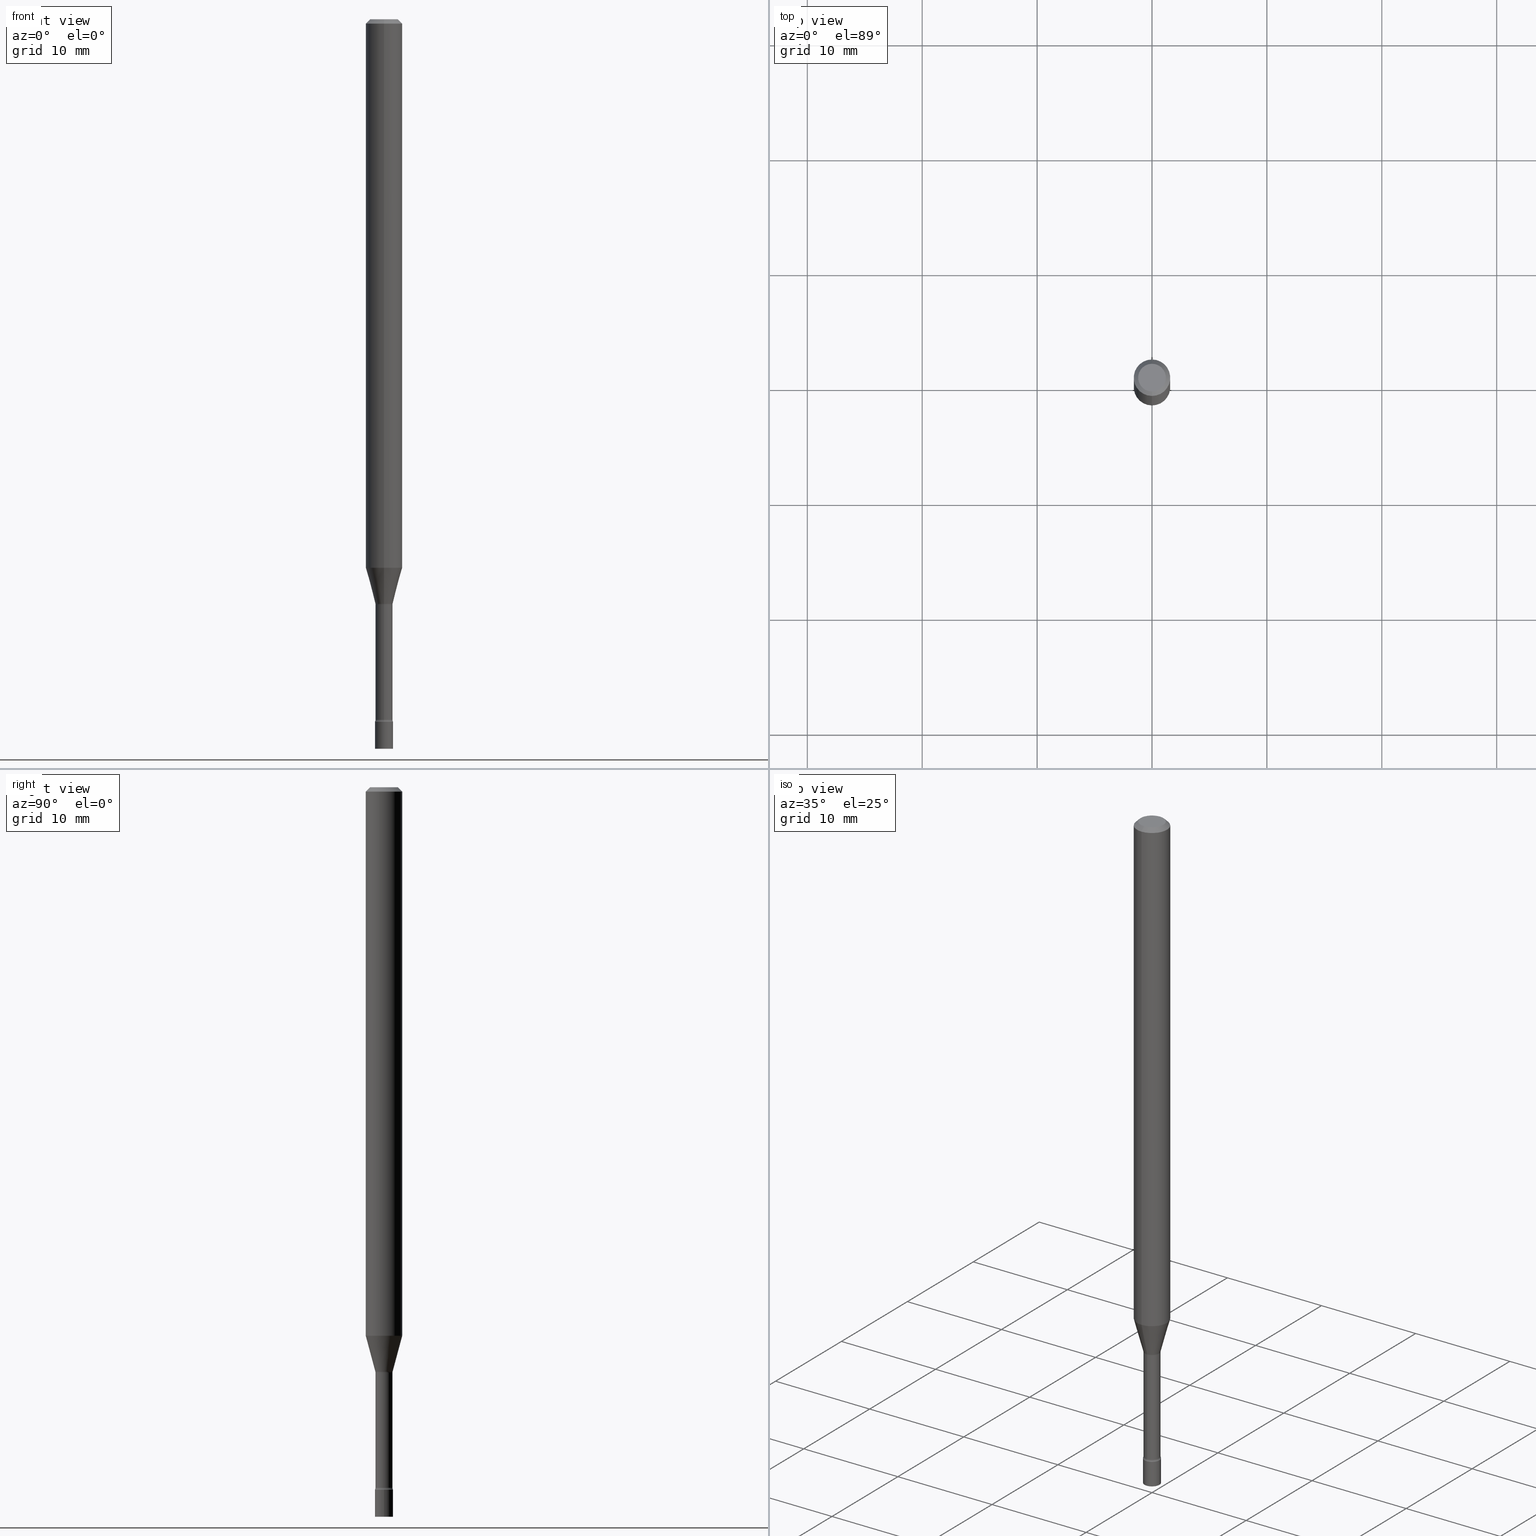
[diagram: canonical four-view strip — front | top / right | iso, engineering-drawing reading convention]
A machine part, canonical four-view strip (front | top / right | iso — engineering-drawing reading convention). The complete STEP part file that produces these views, byte-faithful:
ISO-10303-21;
HEADER;
FILE_DESCRIPTION (( 'STEP AP203' ),
    '1' );
FILE_NAME ('03575.STEP',
    '2024-03-08T21:53:57',
    ( '' ),
    ( '' ),
    'SwSTEP 2.0',
    'SolidWorks 2023',
    '' );
FILE_SCHEMA (( 'CONFIG_CONTROL_DESIGN' ));
ENDSEC;

DATA;
#1 = CC_DESIGN_DATE_AND_TIME_ASSIGNMENT ( #53, #444, ( #489 ) ) ;
#2 = CARTESIAN_POINT ( 'NONE',  ( 4.440892098501088631E-16, 0.06249999999999995143, -0.01500000000000024751 ) ) ;
#3 = APPROVAL_STATUS ( 'not_yet_approved' ) ;
#4 = AXIS2_PLACEMENT_3D ( 'NONE', #271, #38, #192 ) ;
#5 = DIRECTION ( 'NONE',  ( 2.445480495465296209E-29, -3.491464599128644458E-15, -1.000000000000000000 ) ) ;
#6 = CARTESIAN_POINT ( 'NONE',  ( 3.274220454076633282E-16, 0.02966111260565699667, -2.002092501787273271 ) ) ;
#7 = LOCAL_TIME ( 16, 53, 57.00000000000000000, #433 ) ;
#8 = CARTESIAN_POINT ( 'NONE',  ( 3.668220743197951390E-31, -5.237196898692977928E-17, -0.01500000000000003067 ) ) ;
#9 = EDGE_CURVE ( 'NONE', #460, #91, #24, .T. ) ;
#10 = FACE_OUTER_BOUND ( 'NONE', #227, .T. ) ;
#11 = CARTESIAN_POINT ( 'NONE',  ( -3.082978022197902972E-16, -0.04415000000000841862, -2.399783525791634453 ) ) ;
#12 = APPROVAL_STATUS ( 'not_yet_approved' ) ;
#13 = DIRECTION ( 'NONE',  ( 4.937700262164548042E-15, 0.7071067811865451302, -0.7071067811865499042 ) ) ;
#14 = ADVANCED_FACE ( 'NONE', ( #334 ), #185, .F. ) ;
#15 = ORIENTED_EDGE ( 'NONE', *, *, #385, .F. ) ;
#16 = SECURITY_CLASSIFICATION_LEVEL ( 'unclassified' ) ;
#17 = DIRECTION ( 'NONE',  ( 1.000000000000000000, -6.982962677686270655E-15, 0.000000000000000000 ) ) ;
#18 = AXIS2_PLACEMENT_3D ( 'NONE', #326, #465, #331 ) ;
#19 = CARTESIAN_POINT ( 'NONE',  ( 4.905548768736609857E-29, -7.003823536619741706E-15, -2.005974787463811193 ) ) ;
#20 = FACE_OUTER_BOUND ( 'NONE', #420, .T. ) ;
#21 = PERSON_AND_ORGANIZATION_ROLE ( 'creator' ) ;
#22 = DIRECTION ( 'NONE',  ( -6.982962677686265922E-15, -1.000000000000000000, 3.491464599128644063E-15 ) ) ;
#23 = ORIENTED_EDGE ( 'NONE', *, *, #199, .F. ) ;
#24 = LINE ( 'NONE', #285, #224 ) ;
#25 = CARTESIAN_POINT ( 'NONE',  ( -2.035533620544962127E-16, -0.02915000000000841224, -2.399783525791634897 ) ) ;
#26 = ORIENTED_EDGE ( 'NONE', *, *, #339, .T. ) ;
#27 = AXIS2_PLACEMENT_3D ( 'NONE', #348, #107, #290 ) ;
#28 = ADVANCED_FACE ( 'NONE', ( #260 ), #246, .F. ) ;
#29 = ORIENTED_EDGE ( 'NONE', *, *, #161, .T. ) ;
#30 = DIRECTION ( 'NONE',  ( 1.000000000000000000, -6.982962677686266711E-15, 4.876176775795935232E-29 ) ) ;
#31 = ORIENTED_EDGE ( 'NONE', *, *, #468, .F. ) ;
#32 = ORIENTED_EDGE ( 'NONE', *, *, #148, .F. ) ;
#33 = AXIS2_PLACEMENT_3D ( 'NONE', #188, #301, #22 ) ;
#34 = VERTEX_POINT ( 'NONE', #502 ) ;
#35 = CIRCLE ( 'NONE', #104, 0.01500000000000001853 ) ;
#36 = ORIENTED_EDGE ( 'NONE', *, *, #311, .F. ) ;
#37 = ORIENTED_EDGE ( 'NONE', *, *, #468, .T. ) ;
#38 = DIRECTION ( 'NONE',  ( -2.445480495465296209E-29, 3.491464599128644458E-15, 1.000000000000000000 ) ) ;
#39 = AXIS2_PLACEMENT_3D ( 'NONE', #337, #376, #30 ) ;
#40 = CALENDAR_DATE ( 2024, 8, 3 ) ;
#41 = AXIS2_PLACEMENT_3D ( 'NONE', #276, #398, #202 ) ;
#42 = PERSON_AND_ORGANIZATION ( #242, #230 ) ;
#43 = DIRECTION ( 'NONE',  ( -2.445480495465296209E-29, 3.491464599128644458E-15, 1.000000000000000000 ) ) ;
#44 = APPROVAL_ROLE ( '' ) ;
#45 = MANIFOLD_SOLID_BREP ( 'Body-Move/Copy2[2]', #117 ) ;
#46 = CARTESIAN_POINT ( 'NONE',  ( 5.886243416487624138E-29, -8.403995582595451079E-15, -2.407000000000000028 ) ) ;
#47 = DIRECTION ( 'NONE',  ( -1.807323732225324617E-15, -0.2588190451025174088, 0.9659258262890690894 ) ) ;
#48 = EDGE_CURVE ( 'NONE', #388, #190, #318, .T. ) ;
#49 = LINE ( 'NONE', #320, #110 ) ;
#50 = CLOSED_SHELL ( 'NONE', ( #355, #262, #426, #109 ) ) ;
#51 = VERTEX_POINT ( 'NONE', #507 ) ;
#52 = CC_DESIGN_APPROVAL ( #431, ( #489 ) ) ;
#53 = DATE_AND_TIME ( #40, #7 ) ;
#54 = CARTESIAN_POINT ( 'NONE',  ( 4.440892098500625669E-16, 0.06250000000000000000, -2.182165374455402786E-16 ) ) ;
#55 = FACE_OUTER_BOUND ( 'NONE', #64, .T. ) ;
#56 = DATE_AND_TIME ( #407, #389 ) ;
#57 = APPROVAL ( #12, 'UNSPECIFIED' ) ;
#58 = CARTESIAN_POINT ( 'NONE',  ( -4.364351673553458169E-16, -0.06250000000000659195, -1.879536105567577886 ) ) ;
#59 = ORIENTED_EDGE ( 'NONE', *, *, #61, .F. ) ;
#60 = DIRECTION ( 'NONE',  ( 1.000000000000000000, -6.982962677686266711E-15, 4.876176775795935232E-29 ) ) ;
#61 = EDGE_CURVE ( 'NONE', #152, #272, #147, .T. ) ;
#62 = AXIS2_PLACEMENT_3D ( 'NONE', #248, #82, #364 ) ;
#63 = CARTESIAN_POINT ( 'NONE',  ( 0.000000000000000000, 0.000000000000000000, 0.000000000000000000 ) ) ;
#64 = EDGE_LOOP ( 'NONE', ( #322, #345, #36, #448 ) ) ;
#65 = FACE_OUTER_BOUND ( 'NONE', #495, .T. ) ;
#66 = LINE ( 'NONE', #442, #191 ) ;
#67 = CARTESIAN_POINT ( 'NONE',  ( 5.886243416487624138E-29, -8.403995582595451079E-15, -2.407000000000000028 ) ) ;
#68 = ORIENTED_EDGE ( 'NONE', *, *, #454, .F. ) ;
#69 = MECHANICAL_CONTEXT ( 'NONE', #362, 'mechanical' ) ;
#70 = ADVANCED_BREP_SHAPE_REPRESENTATION ( '03575', ( #205, #45, #458 ), #233 ) ;
#71 = VERTEX_POINT ( 'NONE', #6 ) ;
#72 = ORIENTED_EDGE ( 'NONE', *, *, #161, .F. ) ;
#73 = AXIS2_PLACEMENT_3D ( 'NONE', #158, #88, #400 ) ;
#74 = ORIENTED_EDGE ( 'NONE', *, *, #385, .T. ) ;
#75 = SECURITY_CLASSIFICATION ( '', '', #16 ) ;
#76 = ORIENTED_EDGE ( 'NONE', *, *, #313, .F. ) ;
#77 = CARTESIAN_POINT ( 'NONE',  ( 7.071034971237687434E-46, -1.009546726177410776E-31, -2.891470606430781395E-17 ) ) ;
#78 = CIRCLE ( 'NONE', #494, 0.06250000000000000000 ) ;
#79 = ADVANCED_FACE ( 'NONE', ( #55 ), #254, .T. ) ;
#80 = CIRCLE ( 'NONE', #216, 0.03099999999999999978 ) ;
#81 = DIRECTION ( 'NONE',  ( -2.445480495465296209E-29, 3.491464599128644063E-15, 1.000000000000000000 ) ) ;
#82 = DIRECTION ( 'NONE',  ( -2.445480495465296209E-29, 3.491464599128644458E-15, 1.000000000000000000 ) ) ;
#83 = PERSON_AND_ORGANIZATION ( #242, #230 ) ;
#84 = CARTESIAN_POINT ( 'NONE',  ( -2.035533620545056051E-16, -0.02915000000000700364, -2.005974787463811193 ) ) ;
#85 = LINE ( 'NONE', #238, #142 ) ;
#86 = DIRECTION ( 'NONE',  ( -6.982962677686265922E-15, -1.000000000000000000, 3.491464599128644063E-15 ) ) ;
#87 = PERSON_AND_ORGANIZATION ( #242, #230 ) ;
#88 = DIRECTION ( 'NONE',  ( -2.445480495465296209E-29, 3.491464599128644458E-15, 1.000000000000000000 ) ) ;
#89 = AXIS2_PLACEMENT_3D ( 'NONE', #11, #97, #131 ) ;
#90 = CC_DESIGN_DATE_AND_TIME_ASSIGNMENT ( #486, #449, ( #75 ) ) ;
#91 = VERTEX_POINT ( 'NONE', #410 ) ;
#92 = APPROVAL_PERSON_ORGANIZATION ( #327, #338, #340 ) ;
#93 = ADVANCED_FACE ( 'NONE', ( #399 ), #370, .F. ) ;
#94 = EDGE_CURVE ( 'NONE', #388, #473, #287, .T. ) ;
#95 = CARTESIAN_POINT ( 'NONE',  ( 6.113672015462842613E-29, -8.728703347107864943E-15, -2.500000000000000000 ) ) ;
#96 = DIRECTION ( 'NONE',  ( -2.445468806185136877E-29, 3.491481338843145188E-15, 1.000000000000000000 ) ) ;
#97 = DIRECTION ( 'NONE',  ( -1.000000000000000000, 6.982962677686265922E-15, -4.883557194083112340E-29 ) ) ;
#98 = DIRECTION ( 'NONE',  ( -2.445480495465296209E-29, 3.491464599128644458E-15, 1.000000000000000000 ) ) ;
#99 = EDGE_CURVE ( 'NONE', #312, #234, #66, .T. ) ;
#100 = CARTESIAN_POINT ( 'NONE',  ( 0.000000000000000000, 0.000000000000000000, 0.000000000000000000 ) ) ;
#101 = APPROVAL_DATE_TIME ( #132, #57 ) ;
#102 = DIRECTION ( 'NONE',  ( -2.445480495465296209E-29, 3.491464599128644458E-15, 1.000000000000000000 ) ) ;
#103 = CIRCLE ( 'NONE', #159, 0.06250000000000000000 ) ;
#104 = AXIS2_PLACEMENT_3D ( 'NONE', #452, #243, #358 ) ;
#105 = DIRECTION ( 'NONE',  ( -2.445480495465296209E-29, 3.491464599128644458E-15, 1.000000000000000000 ) ) ;
#106 = ADVANCED_FACE ( 'NONE', ( #222 ), #250, .T. ) ;
#107 = DIRECTION ( 'NONE',  ( -2.445480495465296209E-29, 3.491464599128644458E-15, 1.000000000000000000 ) ) ;
#108 = CARTESIAN_POINT ( 'NONE',  ( 3.840629472727447874E-16, 0.04749999999999999362, -1.947592745229184365E-16 ) ) ;
#109 = ADVANCED_FACE ( 'NONE', ( #154 ), #316, .T. ) ;
#110 = VECTOR ( 'NONE', #96, 39.37007874015748143 ) ;
#111 = PERSON_AND_ORGANIZATION_ROLE ( 'design_owner' ) ;
#112 = CIRCLE ( 'NONE', #264, 0.01500000000000001159 ) ;
#113 = EDGE_CURVE ( 'NONE', #418, #152, #267, .T. ) ;
#114 = DIRECTION ( 'NONE',  ( -2.445480495465296209E-29, 3.491464599128644458E-15, 1.000000000000000000 ) ) ;
#115 = EDGE_LOOP ( 'NONE', ( #268, #414, #432, #31 ) ) ;
#116 = ORIENTED_EDGE ( 'NONE', *, *, #519, .F. ) ;
#117 = CLOSED_SHELL ( 'NONE', ( #443, #106, #175, #269, #79, #397, #245, #417, #478, #93, #139, #28, #344, #14 ) ) ;
#118 = ORIENTED_EDGE ( 'NONE', *, *, #498, .F. ) ;
#119 = TOROIDAL_SURFACE ( 'NONE', #299, 0.04415000000000000174, 0.01500000000000002373 ) ;
#120 =( NAMED_UNIT ( * ) PLANE_ANGLE_UNIT ( ) SI_UNIT ( $, .RADIAN. ) );
#121 = LINE ( 'NONE', #54, #174 ) ;
#122 = AXIS2_PLACEMENT_3D ( 'NONE', #220, #215, #341 ) ;
#123 = CARTESIAN_POINT ( 'NONE',  ( 2.136957277799090563E-16, 0.02914999999999165481, -2.399783525791634897 ) ) ;
#124 = CALENDAR_DATE ( 2024, 8, 3 ) ;
#125 = CIRCLE ( 'NONE', #481, 0.02966111260566398414 ) ;
#126 = ORIENTED_EDGE ( 'NONE', *, *, #434, .F. ) ;
#127 = EDGE_CURVE ( 'NONE', #152, #418, #512, .T. ) ;
#128 = FACE_OUTER_BOUND ( 'NONE', #514, .T. ) ;
#129 = ORIENTED_EDGE ( 'NONE', *, *, #284, .T. ) ;
#130 = CARTESIAN_POINT ( 'NONE',  ( -4.364351673553912750E-16, -0.06250000000000005551, -0.01499999999999981209 ) ) ;
#131 = DIRECTION ( 'NONE',  ( -6.982962677686266711E-15, -1.000000000000000000, 0.000000000000000000 ) ) ;
#132 = DATE_AND_TIME ( #179, #363 ) ;
#133 = CIRCLE ( 'NONE', #321, 0.03099999999999999978 ) ;
#134 = DIRECTION ( 'NONE',  ( -2.445480495465296209E-29, 3.491464599128644063E-15, 1.000000000000000000 ) ) ;
#135 = DIRECTION ( 'NONE',  ( -2.445480495465296209E-29, 3.491464599128644458E-15, 1.000000000000000000 ) ) ;
#136 = DIRECTION ( 'NONE',  ( -2.445468806185136597E-29, 3.491481338843145583E-15, 1.000000000000000000 ) ) ;
#137 = DIRECTION ( 'NONE',  ( -6.982962677686265922E-15, -1.000000000000000000, 4.370956789862821150E-15 ) ) ;
#138 = DIRECTION ( 'NONE',  ( -6.982962677686265922E-15, -1.000000000000000000, 0.000000000000000000 ) ) ;
#139 = ADVANCED_FACE ( 'NONE', ( #515 ), #275, .F. ) ;
#140 = DIRECTION ( 'NONE',  ( -6.982962677686265922E-15, -1.000000000000000000, 0.000000000000000000 ) ) ;
#141 = EDGE_LOOP ( 'NONE', ( #59, #482, #37, #195 ) ) ;
#142 = VECTOR ( 'NONE', #477, 39.37007874015748143 ) ;
#143 = DIRECTION ( 'NONE',  ( 6.982962677686265922E-15, 1.000000000000000000, -3.491464599128644063E-15 ) ) ;
#144 = APPROVAL_PERSON_ORGANIZATION ( #217, #57, #167 ) ;
#145 = CARTESIAN_POINT ( 'NONE',  ( 5.868623805662381857E-29, -8.378759225873614383E-15, -2.399783525791634897 ) ) ;
#146 = ORIENTED_EDGE ( 'NONE', *, *, #263, .F. ) ;
#147 = LINE ( 'NONE', #305, #380 ) ;
#148 = EDGE_CURVE ( 'NONE', #190, #241, #335, .T. ) ;
#149 = ORIENTED_EDGE ( 'NONE', *, *, #329, .F. ) ;
#150 = TOROIDAL_SURFACE ( 'NONE', #429, 0.04415000000000004338, 0.01500000000000001332 ) ;
#151 = CIRCLE ( 'NONE', #374, 0.02966111260566398414 ) ;
#152 = VERTEX_POINT ( 'NONE', #157 ) ;
#153 = ORIENTED_EDGE ( 'NONE', *, *, #476, .T. ) ;
#154 = FACE_OUTER_BOUND ( 'NONE', #314, .T. ) ;
#155 = ORIENTED_EDGE ( 'NONE', *, *, #454, .T. ) ;
#156 = EDGE_CURVE ( 'NONE', #463, #234, #204, .T. ) ;
#157 = CARTESIAN_POINT ( 'NONE',  ( -3.773273898774340269E-16, -0.04749999999999999362, 1.369298623943027840E-16 ) ) ;
#158 = CARTESIAN_POINT ( 'NONE',  ( 4.596368886688314482E-29, -6.562333775373317766E-15, -1.879536105567578330 ) ) ;
#159 = AXIS2_PLACEMENT_3D ( 'NONE', #178, #105, #137 ) ;
#160 = ORIENTED_EDGE ( 'NONE', *, *, #393, .F. ) ;
#161 = EDGE_CURVE ( 'NONE', #221, #51, #49, .T. ) ;
#162 = DIRECTION ( 'NONE',  ( 1.000000000000000000, -7.105427357601001070E-15, 4.926315303539704750E-29 ) ) ;
#163 = LOCAL_TIME ( 16, 53, 57.00000000000000000, #480 ) ;
#164 = DIRECTION ( 'NONE',  ( -6.982962677686265922E-15, -1.000000000000000000, 3.491464599128644063E-15 ) ) ;
#165 = DIRECTION ( 'NONE',  ( -6.982962677686265922E-15, -1.000000000000000000, 0.000000000000000000 ) ) ;
#166 = ORIENTED_EDGE ( 'NONE', *, *, #170, .T. ) ;
#167 = APPROVAL_ROLE ( '' ) ;
#168 = DIRECTION ( 'NONE',  ( -6.982962677686265922E-15, -1.000000000000000000, 0.000000000000000000 ) ) ;
#169 = DIRECTION ( 'NONE',  ( -6.982962677686265922E-15, -1.000000000000000000, 3.491464599128644458E-15 ) ) ;
#170 = EDGE_CURVE ( 'NONE', #470, #34, #85, .T. ) ;
#171 = ORIENTED_EDGE ( 'NONE', *, *, #357, .F. ) ;
#172 = AXIS2_PLACEMENT_3D ( 'NONE', #330, #488, #484 ) ;
#173 = DIRECTION ( 'NONE',  ( -2.445480495465296209E-29, 3.491464599128644458E-15, 1.000000000000000000 ) ) ;
#174 = VECTOR ( 'NONE', #134, 39.37007874015748143 ) ;
#175 = ADVANCED_FACE ( 'NONE', ( #405 ), #150, .F. ) ;
#176 = APPROVAL_STATUS ( 'not_yet_approved' ) ;
#177 = DIRECTION ( 'NONE',  ( -6.982962677686265922E-15, -1.000000000000000000, 3.491464599128644063E-15 ) ) ;
#178 = CARTESIAN_POINT ( 'NONE',  ( 4.596368886688314482E-29, -6.562333775373317766E-15, -1.879536105567578330 ) ) ;
#179 = CALENDAR_DATE ( 2024, 8, 3 ) ;
#180 = CARTESIAN_POINT ( 'NONE',  ( 6.113672015462842613E-29, -8.728703347107864943E-15, -2.500000000000000000 ) ) ;
#181 = DIRECTION ( 'NONE',  ( -4.851104656540964275E-15, -0.7071067811865500152, -0.7071067811865450192 ) ) ;
#182 = DIRECTION ( 'NONE',  ( -6.982962677686265922E-15, -1.000000000000000000, 0.000000000000000000 ) ) ;
#183 = ORIENTED_EDGE ( 'NONE', *, *, #48, .F. ) ;
#184 = CARTESIAN_POINT ( 'NONE',  ( 0.000000000000000000, 0.000000000000000000, 0.000000000000000000 ) ) ;
#185 = TOROIDAL_SURFACE ( 'NONE', #475, 0.04415000000000000174, 0.01500000000000002373 ) ;
#186 = CIRCLE ( 'NONE', #319, 0.03099999999999999978 ) ;
#187 = ORIENTED_EDGE ( 'NONE', *, *, #329, .T. ) ;
#188 = CARTESIAN_POINT ( 'NONE',  ( 0.000000000000000000, 0.000000000000000000, 0.000000000000000000 ) ) ;
#189 = ORIENTED_EDGE ( 'NONE', *, *, #170, .F. ) ;
#190 = VERTEX_POINT ( 'NONE', #283 ) ;
#191 = VECTOR ( 'NONE', #47, 39.37007874015748854 ) ;
#192 = DIRECTION ( 'NONE',  ( -6.982962677686266711E-15, -1.000000000000000000, 3.491464599128645247E-15 ) ) ;
#193 = VECTOR ( 'NONE', #13, 39.37007874015748143 ) ;
#194 = ORIENTED_EDGE ( 'NONE', *, *, #513, .T. ) ;
#195 = ORIENTED_EDGE ( 'NONE', *, *, #516, .T. ) ;
#196 = PRODUCT ( '03575', '03575', '', ( #69 ) ) ;
#197 = ORIENTED_EDGE ( 'NONE', *, *, #263, .T. ) ;
#198 = AXIS2_PLACEMENT_3D ( 'NONE', #288, #81, #201 ) ;
#199 = EDGE_CURVE ( 'NONE', #463, #213, #121, .T. ) ;
#200 = DATE_AND_TIME ( #124, #163 ) ;
#201 = DIRECTION ( 'NONE',  ( -6.982962677686265922E-15, -1.000000000000000000, 3.491464599128644063E-15 ) ) ;
#202 = DIRECTION ( 'NONE',  ( -6.982962677686265922E-15, -1.000000000000000000, 0.000000000000000000 ) ) ;
#203 = DIRECTION ( 'NONE',  ( -2.445468806185136877E-29, 3.491481338843145188E-15, 1.000000000000000000 ) ) ;
#204 = CIRCLE ( 'NONE', #73, 0.06250000000000000000 ) ;
#205 = MANIFOLD_SOLID_BREP ( 'Body-Move/Copy2[1]', #50 ) ;
#206 = CARTESIAN_POINT ( 'NONE',  ( 4.905548768736609857E-29, -7.003823536619741706E-15, -2.005974787463811193 ) ) ;
#207 = APPROVAL_DATE_TIME ( #56, #338 ) ;
#208 = CARTESIAN_POINT ( 'NONE',  ( 4.364351673553919652E-16, 0.06249999999999995143, -0.01500000000000024751 ) ) ;
#209 = CC_DESIGN_PERSON_AND_ORGANIZATION_ASSIGNMENT ( #306, #111, ( #196 ) ) ;
#210 = CARTESIAN_POINT ( 'NONE',  ( 2.107548809652177439E-16, 0.02966111260565699320, -2.002092501787273271 ) ) ;
#211 = ORIENTED_EDGE ( 'NONE', *, *, #219, .T. ) ;
#212 = DIRECTION ( 'NONE',  ( 6.982962677686265922E-15, 1.000000000000000000, -3.483106191921935554E-15 ) ) ;
#213 = VERTEX_POINT ( 'NONE', #2 ) ;
#214 = CONICAL_SURFACE ( 'NONE', #307, 0.02966111260566398414, 0.2617993877991495189 ) ;
#215 = DIRECTION ( 'NONE',  ( -2.445480495465296209E-29, 3.491464599128644458E-15, 1.000000000000000000 ) ) ;
#216 = AXIS2_PLACEMENT_3D ( 'NONE', #500, #173, #459 ) ;
#217 = PERSON_AND_ORGANIZATION ( #242, #230 ) ;
#218 = DIRECTION ( 'NONE',  ( -2.445468806185136597E-29, 3.491481338843145583E-15, 1.000000000000000000 ) ) ;
#219 = EDGE_CURVE ( 'NONE', #234, #272, #441, .T. ) ;
#220 = CARTESIAN_POINT ( 'NONE',  ( 4.896078163238095355E-29, -6.990235094171167377E-15, -2.002092501787273271 ) ) ;
#221 = VERTEX_POINT ( 'NONE', #253 ) ;
#222 = FACE_OUTER_BOUND ( 'NONE', #428, .T. ) ;
#223 = CARTESIAN_POINT ( 'NONE',  ( 4.896078163238095355E-29, -6.990235094171167377E-15, -2.002092501787273271 ) ) ;
#224 = VECTOR ( 'NONE', #203, 39.37007874015748143 ) ;
#225 = AXIS2_PLACEMENT_3D ( 'NONE', #492, #98, #457 ) ;
#226 = ORIENTED_EDGE ( 'NONE', *, *, #284, .F. ) ;
#227 = EDGE_LOOP ( 'NONE', ( #472, #352, #504, #270 ) ) ;
#228 = ORIENTED_EDGE ( 'NONE', *, *, #391, .F. ) ;
#229 = AXIS2_PLACEMENT_3D ( 'NONE', #375, #499, #138 ) ;
#230 = ORGANIZATION ( 'UNSPECIFIED', 'UNSPECIFIED', '' ) ;
#231 = ORIENTED_EDGE ( 'NONE', *, *, #113, .T. ) ;
#232 = APPROVAL_DATE_TIME ( #200, #431 ) ;
#233 =( GEOMETRIC_REPRESENTATION_CONTEXT ( 3 ) GLOBAL_UNCERTAINTY_ASSIGNED_CONTEXT ( ( #356 ) ) GLOBAL_UNIT_ASSIGNED_CONTEXT ( ( #404, #120, #421 ) ) REPRESENTATION_CONTEXT ( 'NONE', 'WORKASPACE' ) );
#234 = VERTEX_POINT ( 'NONE', #58 ) ;
#235 = PERSON_AND_ORGANIZATION ( #242, #230 ) ;
#236 = CC_DESIGN_PERSON_AND_ORGANIZATION_ASSIGNMENT ( #83, #371, ( #506 ) ) ;
#237 = CIRCLE ( 'NONE', #394, 0.03099999999999999978 ) ;
#238 = CARTESIAN_POINT ( 'NONE',  ( 2.071232074740692945E-16, 0.02915000000000001618, -1.017761930646000333E-16 ) ) ;
#239 = DESIGN_CONTEXT ( 'detailed design', #464, 'design' ) ;
#240 = CARTESIAN_POINT ( 'NONE',  ( 2.202682480856899248E-16, 0.03099999999999160719, -2.407000000000000473 ) ) ;
#241 = VERTEX_POINT ( 'NONE', #240 ) ;
#242 = PERSON ( 'UNSPECIFIED', 'UNSPECIFIED', 'UNSPECIFIED', ('UNSPECIFIED'), ('UNSPECIFIED'), ('UNSPECIFIED') ) ;
#243 = DIRECTION ( 'NONE',  ( 1.000000000000000000, -7.105427357601001070E-15, 4.926315303539704750E-29 ) ) ;
#244 = CC_DESIGN_PERSON_AND_ORGANIZATION_ASSIGNMENT ( #235, #353, ( #489 ) ) ;
#245 = ADVANCED_FACE ( 'NONE', ( #10 ), #214, .T. ) ;
#246 = TOROIDAL_SURFACE ( 'NONE', #27, 0.04415000000000004338, 0.01500000000000001332 ) ;
#247 = LENGTH_MEASURE_WITH_UNIT ( LENGTH_MEASURE( 0.02539999999999999897 ), #328 );
#248 = CARTESIAN_POINT ( 'NONE',  ( 5.886271552584968156E-29, -8.403955290102646829E-15, -2.407000000000000028 ) ) ;
#249 = CC_DESIGN_APPROVAL ( #57, ( #75 ) ) ;
#250 = CYLINDRICAL_SURFACE ( 'NONE', #278, 0.02915000000000001618 ) ;
#251 = COORDINATED_UNIVERSAL_TIME_OFFSET ( 5, 0, .BEHIND. ) ;
#252 = DIRECTION ( 'NONE',  ( 2.445480495465296209E-29, -3.491464599128644458E-15, -1.000000000000000000 ) ) ;
#253 = CARTESIAN_POINT ( 'NONE',  ( -0.03099999999999999978, -8.346081216766027547E-15, -2.500000000000000000 ) ) ;
#254 = CYLINDRICAL_SURFACE ( 'NONE', #18, 0.06250000000000000000 ) ;
#255 = DIRECTION ( 'NONE',  ( -2.445468806185136597E-29, 3.491481338843145583E-15, 1.000000000000000000 ) ) ;
#256 = CIRCLE ( 'NONE', #229, 0.02915000000000003352 ) ;
#257 = DIRECTION ( 'NONE',  ( -2.445468806185136597E-29, 3.491481338843145583E-15, 1.000000000000000000 ) ) ;
#258 = CC_DESIGN_PERSON_AND_ORGANIZATION_ASSIGNMENT ( #292, #21, ( #506 ) ) ;
#259 = DIRECTION ( 'NONE',  ( -2.445480495465296209E-29, 3.491464599128644458E-15, 1.000000000000000000 ) ) ;
#260 = FACE_OUTER_BOUND ( 'NONE', #387, .T. ) ;
#261 = CYLINDRICAL_SURFACE ( 'NONE', #456, 0.03099999999999999978 ) ;
#262 = ADVANCED_FACE ( 'NONE', ( #128 ), #409, .T. ) ;
#263 = EDGE_CURVE ( 'NONE', #34, #473, #510, .T. ) ;
#264 = AXIS2_PLACEMENT_3D ( 'NONE', #286, #162, #325 ) ;
#265 = ORIENTED_EDGE ( 'NONE', *, *, #434, .T. ) ;
#266 = PRODUCT_DEFINITION_SHAPE ( 'NONE', 'NONE',  #489 ) ;
#267 = CIRCLE ( 'NONE', #4, 0.04749999999999999362 ) ;
#268 = ORIENTED_EDGE ( 'NONE', *, *, #127, .F. ) ;
#269 = ADVANCED_FACE ( 'NONE', ( #440 ), #435, .T. ) ;
#270 = ORIENTED_EDGE ( 'NONE', *, *, #156, .F. ) ;
#271 = CARTESIAN_POINT ( 'NONE',  ( 7.071034971237687434E-46, -1.009546726177410776E-31, -2.891470606430781395E-17 ) ) ;
#272 = VERTEX_POINT ( 'NONE', #130 ) ;
#273 = CIRCLE ( 'NONE', #225, 0.02914999999999999883 ) ;
#274 = CC_DESIGN_PERSON_AND_ORGANIZATION_ASSIGNMENT ( #87, #491, ( #75 ) ) ;
#275 = PLANE ( 'NONE',  #198 ) ;
#276 = CARTESIAN_POINT ( 'NONE',  ( 4.905572217137893975E-29, -7.003789957174503140E-15, -2.005974787463811193 ) ) ;
#277 = AXIS2_PLACEMENT_3D ( 'NONE', #145, #297, #182 ) ;
#278 = AXIS2_PLACEMENT_3D ( 'NONE', #406, #361, #164 ) ;
#279 = FACE_OUTER_BOUND ( 'NONE', #141, .T. ) ;
#280 = CARTESIAN_POINT ( 'NONE',  ( -4.364351673553916201E-16, -0.06250000000000000000, 2.182165374455402786E-16 ) ) ;
#281 = ORIENTED_EDGE ( 'NONE', *, *, #94, .T. ) ;
#282 = CARTESIAN_POINT ( 'NONE',  ( 0.03099999999999999978, -8.945175190116139274E-15, -2.500000000000000000 ) ) ;
#283 = CARTESIAN_POINT ( 'NONE',  ( -2.164718430082154870E-16, -0.03100000000000841319, -2.406999999999999584 ) ) ;
#284 = EDGE_CURVE ( 'NONE', #470, #241, #112, .T. ) ;
#285 = CARTESIAN_POINT ( 'NONE',  ( 0.03099999999999999978, -2.164718430082742572E-16, 1.511614800496739984E-30 ) ) ;
#286 = CARTESIAN_POINT ( 'NONE',  ( 3.137046178381431132E-16, 0.04414999999999166813, -2.399783525791635341 ) ) ;
#287 = LINE ( 'NONE', #300, #360 ) ;
#288 = CARTESIAN_POINT ( 'NONE',  ( 2.164718430083331013E-16, 0.03099999999999159331, -2.407000000000000028 ) ) ;
#289 = CC_DESIGN_SECURITY_CLASSIFICATION ( #75, ( #506 ) ) ;
#290 = DIRECTION ( 'NONE',  ( -6.982962677686265922E-15, -1.000000000000000000, 3.491464599128644458E-15 ) ) ;
#291 = DIRECTION ( 'NONE',  ( -2.445480495465296209E-29, 3.491464599128644458E-15, 1.000000000000000000 ) ) ;
#292 = PERSON_AND_ORGANIZATION ( #242, #230 ) ;
#293 = DIRECTION ( 'NONE',  ( 1.000000000000000000, -6.982962677686270655E-15, 0.000000000000000000 ) ) ;
#294 = FACE_OUTER_BOUND ( 'NONE', #430, .T. ) ;
#295 = CYLINDRICAL_SURFACE ( 'NONE', #39, 0.03099999999999999978 ) ;
#296 = CIRCLE ( 'NONE', #309, 0.01500000000000001853 ) ;
#297 = DIRECTION ( 'NONE',  ( -2.445480495465296209E-29, 3.491464599128644458E-15, 1.000000000000000000 ) ) ;
#298 = ORIENTED_EDGE ( 'NONE', *, *, #94, .F. ) ;
#299 = AXIS2_PLACEMENT_3D ( 'NONE', #19, #323, #177 ) ;
#300 = CARTESIAN_POINT ( 'NONE',  ( -2.035533620545547610E-16, -0.02915000000000001618, 1.017761930646000333E-16 ) ) ;
#301 = DIRECTION ( 'NONE',  ( -2.445480495465296209E-29, 3.491464599128644458E-15, 1.000000000000000000 ) ) ;
#302 = ORIENTED_EDGE ( 'NONE', *, *, #391, .T. ) ;
#303 = DIRECTION ( 'NONE',  ( 1.000000000000000000, 0.000000000000000000, 0.000000000000000000 ) ) ;
#304 = EDGE_CURVE ( 'NONE', #71, #463, #372, .T. ) ;
#305 = CARTESIAN_POINT ( 'NONE',  ( -4.287811248607203282E-16, -0.06250000000000005551, -0.01499999999999981209 ) ) ;
#306 = PERSON_AND_ORGANIZATION ( #242, #230 ) ;
#307 = AXIS2_PLACEMENT_3D ( 'NONE', #447, #333, #165 ) ;
#308 = EDGE_LOOP ( 'NONE', ( #118, #366, #197, #15 ) ) ;
#309 = AXIS2_PLACEMENT_3D ( 'NONE', #413, #416, #343 ) ;
#310 = CARTESIAN_POINT ( 'NONE',  ( 3.668220743197951390E-31, -5.237196898692977928E-17, -0.01500000000000003067 ) ) ;
#311 = EDGE_CURVE ( 'NONE', #272, #213, #78, .T. ) ;
#312 = VERTEX_POINT ( 'NONE', #419 ) ;
#313 = EDGE_CURVE ( 'NONE', #51, #91, #133, .T. ) ;
#314 = EDGE_LOOP ( 'NONE', ( #171, #68 ) ) ;
#315 = APPLICATION_PROTOCOL_DEFINITION ( 'international standard', 'config_control_design', 1994, #464 ) ;
#316 = PLANE ( 'NONE',  #395 ) ;
#317 = ORIENTED_EDGE ( 'NONE', *, *, #357, .T. ) ;
#318 = CIRCLE ( 'NONE', #89, 0.01500000000000001159 ) ;
#319 = AXIS2_PLACEMENT_3D ( 'NONE', #46, #450, #402 ) ;
#320 = CARTESIAN_POINT ( 'NONE',  ( -0.03099999999999999978, 2.202682480856310560E-16, -1.524869877979020612E-30 ) ) ;
#321 = AXIS2_PLACEMENT_3D ( 'NONE', #67, #218, #411 ) ;
#322 = ORIENTED_EDGE ( 'NONE', *, *, #393, .T. ) ;
#323 = DIRECTION ( 'NONE',  ( -2.445480495465296209E-29, 3.491464599128644458E-15, 1.000000000000000000 ) ) ;
#324 = APPROVAL_PERSON_ORGANIZATION ( #42, #431, #44 ) ;
#325 = DIRECTION ( 'NONE',  ( 7.105427357601001859E-15, 1.000000000000000000, 0.000000000000000000 ) ) ;
#326 = CARTESIAN_POINT ( 'NONE',  ( 0.000000000000000000, 0.000000000000000000, 0.000000000000000000 ) ) ;
#327 = PERSON_AND_ORGANIZATION ( #242, #230 ) ;
#328 =( LENGTH_UNIT ( ) NAMED_UNIT ( * ) SI_UNIT ( $, .METRE. ) );
#329 = EDGE_CURVE ( 'NONE', #312, #71, #151, .T. ) ;
#330 = CARTESIAN_POINT ( 'NONE',  ( 5.886243416487624138E-29, -8.403995582595451079E-15, -2.407000000000000028 ) ) ;
#331 = DIRECTION ( 'NONE',  ( -6.982962677686265922E-15, -1.000000000000000000, 3.491464599128644458E-15 ) ) ;
#332 = CARTESIAN_POINT ( 'NONE',  ( 4.440892098501083701E-16, 0.06249999999999340805, -1.879536105567578552 ) ) ;
#333 = DIRECTION ( 'NONE',  ( -2.445480495465296209E-29, 3.491464599128644458E-15, 1.000000000000000000 ) ) ;
#334 = FACE_OUTER_BOUND ( 'NONE', #350, .T. ) ;
#335 = CIRCLE ( 'NONE', #62, 0.03099999999999999978 ) ;
#336 = COORDINATED_UNIVERSAL_TIME_OFFSET ( 5, 0, .BEHIND. ) ;
#337 = CARTESIAN_POINT ( 'NONE',  ( 0.000000000000000000, 0.000000000000000000, 0.000000000000000000 ) ) ;
#338 = APPROVAL ( #176, 'UNSPECIFIED' ) ;
#339 = EDGE_CURVE ( 'NONE', #388, #470, #469, .T. ) ;
#340 = APPROVAL_ROLE ( '' ) ;
#341 = DIRECTION ( 'NONE',  ( -6.982962677686265922E-15, -1.000000000000000000, 0.000000000000000000 ) ) ;
#342 = DIMENSIONAL_EXPONENTS ( 1.000000000000000000, 0.000000000000000000, 0.000000000000000000, 0.000000000000000000, 0.000000000000000000, 0.000000000000000000, 0.000000000000000000 ) ;
#343 = DIRECTION ( 'NONE',  ( -6.982962677686267499E-15, -1.000000000000000000, 0.000000000000000000 ) ) ;
#344 = ADVANCED_FACE ( 'NONE', ( #20 ), #451, .T. ) ;
#345 = ORIENTED_EDGE ( 'NONE', *, *, #199, .T. ) ;
#346 = CYLINDRICAL_SURFACE ( 'NONE', #479, 0.06250000000000000000 ) ;
#347 = ORIENTED_EDGE ( 'NONE', *, *, #313, .T. ) ;
#348 = CARTESIAN_POINT ( 'NONE',  ( 5.868595753920427457E-29, -8.378799397564700895E-15, -2.399783525791634897 ) ) ;
#349 = CONICAL_SURFACE ( 'NONE', #122, 0.02966111260566398414, 0.2617993877991495189 ) ;
#350 = EDGE_LOOP ( 'NONE', ( #116, #149, #74, #194 ) ) ;
#351 = EDGE_LOOP ( 'NONE', ( #32, #228 ) ) ;
#352 = ORIENTED_EDGE ( 'NONE', *, *, #498, .T. ) ;
#353 = PERSON_AND_ORGANIZATION_ROLE ( 'creator' ) ;
#354 = AXIS2_PLACEMENT_3D ( 'NONE', #359, #5, #212 ) ;
#355 = ADVANCED_FACE ( 'NONE', ( #381 ), #295, .T. ) ;
#356 = UNCERTAINTY_MEASURE_WITH_UNIT (LENGTH_MEASURE( 1.000000000000000082E-05 ), #404, 'distance_accuracy_value', 'NONE');
#357 = EDGE_CURVE ( 'NONE', #460, #221, #237, .T. ) ;
#358 = DIRECTION ( 'NONE',  ( 7.105427357601001859E-15, 1.000000000000000000, 0.000000000000000000 ) ) ;
#359 = CARTESIAN_POINT ( 'NONE',  ( 3.668220743197951390E-31, -5.237196898692977928E-17, -0.01500000000000003067 ) ) ;
#360 = VECTOR ( 'NONE', #461, 39.37007874015748143 ) ;
#361 = DIRECTION ( 'NONE',  ( -2.445480495465296209E-29, 3.491464599128644458E-15, 1.000000000000000000 ) ) ;
#362 = APPLICATION_CONTEXT ( 'configuration controlled 3d designs of mechanical parts and assemblies' ) ;
#363 = LOCAL_TIME ( 16, 53, 57.00000000000000000, #497 ) ;
#364 = DIRECTION ( 'NONE',  ( -6.982962677686265922E-15, -1.000000000000000000, 0.000000000000000000 ) ) ;
#365 = CIRCLE ( 'NONE', #412, 0.03099999999999999978 ) ;
#366 = ORIENTED_EDGE ( 'NONE', *, *, #519, .T. ) ;
#367 = CALENDAR_DATE ( 2024, 8, 3 ) ;
#368 = DIRECTION ( 'NONE',  ( -2.445480495465296209E-29, 3.491464599128644458E-15, 1.000000000000000000 ) ) ;
#369 = DIRECTION ( 'NONE',  ( 1.839019923739594793E-15, 0.2588190451025241812, 0.9659258262890673130 ) ) ;
#370 = PLANE ( 'NONE',  #445 ) ;
#371 = PERSON_AND_ORGANIZATION_ROLE ( 'design_supplier' ) ;
#372 = LINE ( 'NONE', #210, #467 ) ;
#373 = DIRECTION ( 'NONE',  ( 2.445480495465296209E-29, -3.491464599128644063E-15, -1.000000000000000000 ) ) ;
#374 = AXIS2_PLACEMENT_3D ( 'NONE', #223, #102, #140 ) ;
#375 = CARTESIAN_POINT ( 'NONE',  ( 5.868623805662381857E-29, -8.378759225873614383E-15, -2.399783525791634897 ) ) ;
#376 = DIRECTION ( 'NONE',  ( -2.445468806185136597E-29, 3.491481338843145583E-15, 1.000000000000000000 ) ) ;
#377 = FACE_OUTER_BOUND ( 'NONE', #378, .T. ) ;
#378 = EDGE_LOOP ( 'NONE', ( #23, #384, #211, #424 ) ) ;
#379 = EDGE_LOOP ( 'NONE', ( #317, #29, #466, #392 ) ) ;
#380 = VECTOR ( 'NONE', #181, 39.37007874015748143 ) ;
#381 = FACE_OUTER_BOUND ( 'NONE', #379, .T. ) ;
#382 = LOCAL_TIME ( 16, 53, 57.00000000000000000, #336 ) ;
#383 = APPLICATION_PROTOCOL_DEFINITION ( 'international standard', 'config_control_design', 1994, #362 ) ;
#384 = ORIENTED_EDGE ( 'NONE', *, *, #156, .T. ) ;
#385 = EDGE_CURVE ( 'NONE', #312, #473, #296, .T. ) ;
#386 = DIRECTION ( 'NONE',  ( -6.982962677686265922E-15, -1.000000000000000000, 3.483106191921935554E-15 ) ) ;
#387 = EDGE_LOOP ( 'NONE', ( #226, #518, #390, #509 ) ) ;
#388 = VERTEX_POINT ( 'NONE', #25 ) ;
#389 = LOCAL_TIME ( 16, 53, 57.00000000000000000, #251 ) ;
#390 = ORIENTED_EDGE ( 'NONE', *, *, #48, .T. ) ;
#391 = EDGE_CURVE ( 'NONE', #241, #190, #80, .T. ) ;
#392 = ORIENTED_EDGE ( 'NONE', *, *, #9, .F. ) ;
#393 = EDGE_CURVE ( 'NONE', #234, #463, #103, .T. ) ;
#394 = AXIS2_PLACEMENT_3D ( 'NONE', #180, #257, #17 ) ;
#395 = AXIS2_PLACEMENT_3D ( 'NONE', #423, #427, #511 ) ;
#396 = CARTESIAN_POINT ( 'NONE',  ( 5.868595753920427457E-29, -8.378799397564700895E-15, -2.399783525791634897 ) ) ;
#397 = ADVANCED_FACE ( 'NONE', ( #65 ), #349, .T. ) ;
#398 = DIRECTION ( 'NONE',  ( -2.445480495465296209E-29, 3.491464599128644458E-15, 1.000000000000000000 ) ) ;
#399 = FACE_OUTER_BOUND ( 'NONE', #474, .T. ) ;
#400 = DIRECTION ( 'NONE',  ( -6.982962677686265922E-15, -1.000000000000000000, 4.370956789862821150E-15 ) ) ;
#401 = EDGE_LOOP ( 'NONE', ( #126, #129, #302, #183 ) ) ;
#402 = DIRECTION ( 'NONE',  ( 1.000000000000000000, -6.982962677686270655E-15, 0.000000000000000000 ) ) ;
#403 = CC_DESIGN_APPROVAL ( #338, ( #506 ) ) ;
#404 =( CONVERSION_BASED_UNIT ( 'INCH', #247 ) LENGTH_UNIT ( ) NAMED_UNIT ( #342 ) );
#405 = FACE_OUTER_BOUND ( 'NONE', #401, .T. ) ;
#406 = CARTESIAN_POINT ( 'NONE',  ( 0.000000000000000000, 0.000000000000000000, 0.000000000000000000 ) ) ;
#407 = CALENDAR_DATE ( 2024, 8, 3 ) ;
#408 = DIRECTION ( 'NONE',  ( 6.982962677686265922E-15, 1.000000000000000000, -3.483106191921935554E-15 ) ) ;
#409 = PLANE ( 'NONE',  #172 ) ;
#410 = CARTESIAN_POINT ( 'NONE',  ( 0.03099999999999999978, -8.620467425603725410E-15, -2.407000000000000028 ) ) ;
#411 = DIRECTION ( 'NONE',  ( 1.000000000000000000, -6.982962677686270655E-15, 0.000000000000000000 ) ) ;
#412 = AXIS2_PLACEMENT_3D ( 'NONE', #95, #136, #293 ) ;
#413 = CARTESIAN_POINT ( 'NONE',  ( -3.082978022197996156E-16, -0.04415000000000700309, -2.005974787463811193 ) ) ;
#414 = ORIENTED_EDGE ( 'NONE', *, *, #61, .T. ) ;
#415 = AXIS2_PLACEMENT_3D ( 'NONE', #310, #114, #386 ) ;
#416 = DIRECTION ( 'NONE',  ( -1.000000000000000000, 6.982962677686265922E-15, -4.883557194083112340E-29 ) ) ;
#417 = ADVANCED_FACE ( 'NONE', ( #377 ), #346, .T. ) ;
#418 = VERTEX_POINT ( 'NONE', #108 ) ;
#419 = CARTESIAN_POINT ( 'NONE',  ( -2.071224423039522682E-16, -0.02966111260567097854, -2.002092501787273271 ) ) ;
#420 = EDGE_LOOP ( 'NONE', ( #189, #265, #281, #146 ) ) ;
#421 =( NAMED_UNIT ( * ) SI_UNIT ( $, .STERADIAN. ) SOLID_ANGLE_UNIT ( ) );
#422 = AXIS2_PLACEMENT_3D ( 'NONE', #77, #291, #471 ) ;
#423 = CARTESIAN_POINT ( 'NONE',  ( 2.164718430083353692E-16, 0.03099999999999127065, -2.500000000000000000 ) ) ;
#424 = ORIENTED_EDGE ( 'NONE', *, *, #516, .F. ) ;
#425 = AXIS2_PLACEMENT_3D ( 'NONE', #8, #252, #408 ) ;
#426 = ADVANCED_FACE ( 'NONE', ( #294 ), #261, .T. ) ;
#427 = DIRECTION ( 'NONE',  ( 2.438088387897960049E-29, -3.491481338843145188E-15, -1.000000000000000000 ) ) ;
#428 = EDGE_LOOP ( 'NONE', ( #26, #166, #438, #298 ) ) ;
#429 = AXIS2_PLACEMENT_3D ( 'NONE', #396, #43, #169 ) ;
#430 = EDGE_LOOP ( 'NONE', ( #72, #155, #508, #76 ) ) ;
#431 = APPROVAL ( #3, 'UNSPECIFIED' ) ;
#432 = ORIENTED_EDGE ( 'NONE', *, *, #311, .T. ) ;
#433 = COORDINATED_UNIVERSAL_TIME_OFFSET ( 5, 0, .BEHIND. ) ;
#434 = EDGE_CURVE ( 'NONE', #470, #388, #256, .T. ) ;
#435 = CONICAL_SURFACE ( 'NONE', #354, 0.06250000000000000000, 0.7853981633974483900 ) ;
#436 = VECTOR ( 'NONE', #437, 39.37007874015748143 ) ;
#437 = DIRECTION ( 'NONE',  ( -2.445480495465296209E-29, 3.491464599128644063E-15, 1.000000000000000000 ) ) ;
#438 = ORIENTED_EDGE ( 'NONE', *, *, #513, .F. ) ;
#439 = LINE ( 'NONE', #208, #193 ) ;
#440 = FACE_OUTER_BOUND ( 'NONE', #115, .T. ) ;
#441 = LINE ( 'NONE', #280, #436 ) ;
#442 = CARTESIAN_POINT ( 'NONE',  ( -2.071224423039522682E-16, -0.02966111260567097854, -2.002092501787273271 ) ) ;
#443 = ADVANCED_FACE ( 'NONE', ( #455 ), #119, .F. ) ;
#444 = DATE_TIME_ROLE ( 'creation_date' ) ;
#445 = AXIS2_PLACEMENT_3D ( 'NONE', #490, #373, #143 ) ;
#446 = CONICAL_SURFACE ( 'NONE', #425, 0.06250000000000000000, 0.7853981633974483900 ) ;
#447 = CARTESIAN_POINT ( 'NONE',  ( 4.896078163238095355E-29, -6.990235094171167377E-15, -2.002092501787273271 ) ) ;
#448 = ORIENTED_EDGE ( 'NONE', *, *, #219, .F. ) ;
#449 = DATE_TIME_ROLE ( 'classification_date' ) ;
#450 = DIRECTION ( 'NONE',  ( -2.445468806185136597E-29, 3.491481338843145583E-15, 1.000000000000000000 ) ) ;
#451 = CYLINDRICAL_SURFACE ( 'NONE', #33, 0.02915000000000001618 ) ;
#452 = CARTESIAN_POINT ( 'NONE',  ( 3.137046178381332524E-16, 0.04414999999999300040, -2.005974787463811637 ) ) ;
#453 = SHAPE_DEFINITION_REPRESENTATION ( #266, #70 ) ;
#454 = EDGE_CURVE ( 'NONE', #221, #460, #365, .T. ) ;
#455 = FACE_OUTER_BOUND ( 'NONE', #308, .T. ) ;
#456 = AXIS2_PLACEMENT_3D ( 'NONE', #100, #255, #60 ) ;
#457 = DIRECTION ( 'NONE',  ( -6.982962677686265922E-15, -1.000000000000000000, 0.000000000000000000 ) ) ;
#458 = AXIS2_PLACEMENT_3D ( 'NONE', #184, #505, #303 ) ;
#459 = DIRECTION ( 'NONE',  ( -6.982962677686265922E-15, -1.000000000000000000, 0.000000000000000000 ) ) ;
#460 = VERTEX_POINT ( 'NONE', #282 ) ;
#461 = DIRECTION ( 'NONE',  ( -2.445480495465296209E-29, 3.491464599128644063E-15, 1.000000000000000000 ) ) ;
#462 = DIRECTION ( 'NONE',  ( -2.445480495465296209E-29, 3.491464599128644458E-15, 1.000000000000000000 ) ) ;
#463 = VERTEX_POINT ( 'NONE', #332 ) ;
#464 = APPLICATION_CONTEXT ( 'configuration controlled 3d designs of mechanical parts and assemblies' ) ;
#465 = DIRECTION ( 'NONE',  ( -2.445480495465296209E-29, 3.491464599128644458E-15, 1.000000000000000000 ) ) ;
#466 = ORIENTED_EDGE ( 'NONE', *, *, #476, .F. ) ;
#467 = VECTOR ( 'NONE', #369, 39.37007874015748854 ) ;
#468 = EDGE_CURVE ( 'NONE', #418, #213, #439, .T. ) ;
#469 = CIRCLE ( 'NONE', #277, 0.02915000000000003352 ) ;
#470 = VERTEX_POINT ( 'NONE', #123 ) ;
#471 = DIRECTION ( 'NONE',  ( -6.982962677686266711E-15, -1.000000000000000000, 3.491464599128645247E-15 ) ) ;
#472 = ORIENTED_EDGE ( 'NONE', *, *, #304, .F. ) ;
#473 = VERTEX_POINT ( 'NONE', #84 ) ;
#474 = EDGE_LOOP ( 'NONE', ( #231, #517 ) ) ;
#475 = AXIS2_PLACEMENT_3D ( 'NONE', #206, #135, #86 ) ;
#476 = EDGE_CURVE ( 'NONE', #91, #51, #186, .T. ) ;
#477 = DIRECTION ( 'NONE',  ( -2.445480495465296209E-29, 3.491464599128644063E-15, 1.000000000000000000 ) ) ;
#478 = ADVANCED_FACE ( 'NONE', ( #279 ), #446, .T. ) ;
#479 = AXIS2_PLACEMENT_3D ( 'NONE', #63, #462, #496 ) ;
#480 = COORDINATED_UNIVERSAL_TIME_OFFSET ( 5, 0, .BEHIND. ) ;
#481 = AXIS2_PLACEMENT_3D ( 'NONE', #487, #368, #168 ) ;
#482 = ORIENTED_EDGE ( 'NONE', *, *, #113, .F. ) ;
#483 = PRODUCT_RELATED_PRODUCT_CATEGORY ( 'detail', '', ( #196 ) ) ;
#484 = DIRECTION ( 'NONE',  ( 1.000000000000000000, -6.982962677686265922E-15, 4.876176775795935793E-29 ) ) ;
#485 = ORIENTED_EDGE ( 'NONE', *, *, #99, .F. ) ;
#486 = DATE_AND_TIME ( #367, #382 ) ;
#487 = CARTESIAN_POINT ( 'NONE',  ( 4.896078163238095355E-29, -6.990235094171167377E-15, -2.002092501787273271 ) ) ;
#488 = DIRECTION ( 'NONE',  ( -2.438088387897960049E-29, 3.491481338843145188E-15, 1.000000000000000000 ) ) ;
#489 = PRODUCT_DEFINITION ( 'UNKNOWN', '', #506, #239 ) ;
#490 = CARTESIAN_POINT ( 'NONE',  ( 3.316907271900976096E-16, 0.04749999999999999362, -1.803019214907645049E-16 ) ) ;
#491 = PERSON_AND_ORGANIZATION_ROLE ( 'classification_officer' ) ;
#492 = CARTESIAN_POINT ( 'NONE',  ( 4.905572217137893975E-29, -7.003789957174503140E-15, -2.005974787463811193 ) ) ;
#493 = CARTESIAN_POINT ( 'NONE',  ( 3.668220743197951390E-31, -5.237196898692977928E-17, -0.01500000000000003067 ) ) ;
#494 = AXIS2_PLACEMENT_3D ( 'NONE', #493, #259, #503 ) ;
#495 = EDGE_LOOP ( 'NONE', ( #187, #501, #160, #485 ) ) ;
#496 = DIRECTION ( 'NONE',  ( -6.982962677686265922E-15, -1.000000000000000000, 3.491464599128644458E-15 ) ) ;
#497 = COORDINATED_UNIVERSAL_TIME_OFFSET ( 5, 0, .BEHIND. ) ;
#498 = EDGE_CURVE ( 'NONE', #71, #312, #125, .T. ) ;
#499 = DIRECTION ( 'NONE',  ( -2.445480495465296209E-29, 3.491464599128644458E-15, 1.000000000000000000 ) ) ;
#500 = CARTESIAN_POINT ( 'NONE',  ( 5.886271552584968156E-29, -8.403955290102646829E-15, -2.407000000000000028 ) ) ;
#501 = ORIENTED_EDGE ( 'NONE', *, *, #304, .T. ) ;
#502 = CARTESIAN_POINT ( 'NONE',  ( 2.071232074741279660E-16, 0.02914999999999299402, -2.005974787463811193 ) ) ;
#503 = DIRECTION ( 'NONE',  ( -6.982962677686265922E-15, -1.000000000000000000, 3.483106191921935554E-15 ) ) ;
#504 = ORIENTED_EDGE ( 'NONE', *, *, #99, .T. ) ;
#505 = DIRECTION ( 'NONE',  ( 0.000000000000000000, 0.000000000000000000, 1.000000000000000000 ) ) ;
#506 = PRODUCT_DEFINITION_FORMATION_WITH_SPECIFIED_SOURCE ( 'ANY', '', #196, .NOT_KNOWN. ) ;
#507 = CARTESIAN_POINT ( 'NONE',  ( -0.03099999999999999978, -8.346081216766027547E-15, -2.407000000000000028 ) ) ;
#508 = ORIENTED_EDGE ( 'NONE', *, *, #9, .T. ) ;
#509 = ORIENTED_EDGE ( 'NONE', *, *, #148, .T. ) ;
#510 = CIRCLE ( 'NONE', #41, 0.02914999999999999883 ) ;
#511 = DIRECTION ( 'NONE',  ( -1.000000000000000000, 6.982962677686265922E-15, -4.876176775795935793E-29 ) ) ;
#512 = CIRCLE ( 'NONE', #422, 0.04749999999999999362 ) ;
#513 = EDGE_CURVE ( 'NONE', #473, #34, #273, .T. ) ;
#514 = EDGE_LOOP ( 'NONE', ( #153, #347 ) ) ;
#515 = FACE_OUTER_BOUND ( 'NONE', #351, .T. ) ;
#516 = EDGE_CURVE ( 'NONE', #213, #272, #520, .T. ) ;
#517 = ORIENTED_EDGE ( 'NONE', *, *, #127, .T. ) ;
#518 = ORIENTED_EDGE ( 'NONE', *, *, #339, .F. ) ;
#519 = EDGE_CURVE ( 'NONE', #71, #34, #35, .T. ) ;
#520 = CIRCLE ( 'NONE', #415, 0.06250000000000000000 ) ;
ENDSEC;
END-ISO-10303-21;
